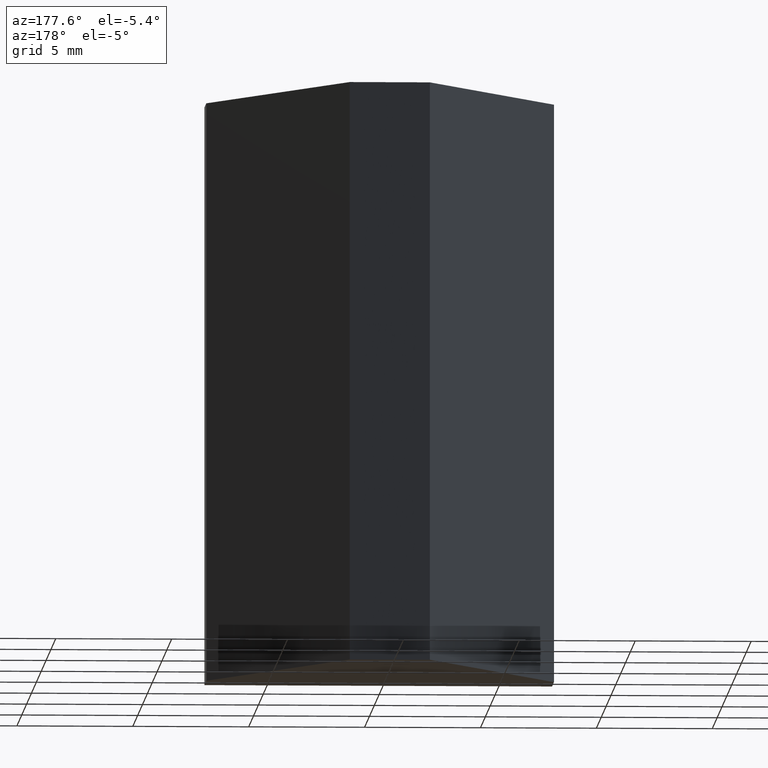
[diagram: clean part render]
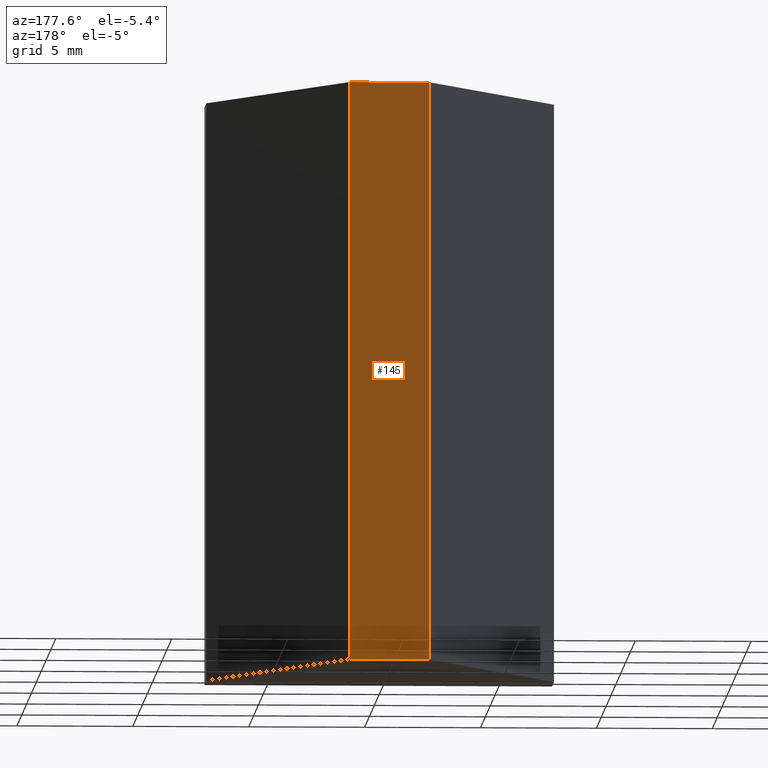
[diagram: same view with one face highlighted and labeled with its STEP entity id]
A machine part, auxiliary view. The second image highlights one B-rep face of the part: STEP entity #145.
In plain terms, the highlighted planar face has unit normal (0, 1, 0).
Its self-contained STEP definition (entity closure, byte-faithful):
#19=FACE_OUTER_BOUND('',#27,.T.);
#27=EDGE_LOOP('',(#112,#113,#114,#115));
#36=LINE('',#229,#54);
#42=LINE('',#240,#60);
#43=LINE('',#243,#61);
#44=LINE('',#244,#62);
#54=VECTOR('',#189,10.);
#60=VECTOR('',#199,10.);
#61=VECTOR('',#202,10.);
#62=VECTOR('',#203,10.);
#72=VERTEX_POINT('',#226);
#73=VERTEX_POINT('',#228);
#76=VERTEX_POINT('',#238);
#77=VERTEX_POINT('',#242);
#84=EDGE_CURVE('',#73,#72,#36,.T.);
#90=EDGE_CURVE('',#76,#72,#42,.T.);
#91=EDGE_CURVE('',#76,#77,#43,.T.);
#92=EDGE_CURVE('',#77,#73,#44,.T.);
#112=ORIENTED_EDGE('',*,*,#91,.T.);
#113=ORIENTED_EDGE('',*,*,#92,.T.);
#114=ORIENTED_EDGE('',*,*,#84,.T.);
#115=ORIENTED_EDGE('',*,*,#90,.F.);
#137=PLANE('',#176);
#145=ADVANCED_FACE('',(#19),#137,.T.);
#176=AXIS2_PLACEMENT_3D('',#241,#200,#201);
#189=DIRECTION('',(-1.,0.,0.));
#199=DIRECTION('',(0.,0.,-1.));
#200=DIRECTION('center_axis',(0.,1.,0.));
#201=DIRECTION('ref_axis',(0.,0.,1.));
#202=DIRECTION('',(1.,0.,0.));
#203=DIRECTION('',(0.,0.,-1.));
#226=CARTESIAN_POINT('',(-1.72649730810375,6.,-12.5));
#228=CARTESIAN_POINT('',(1.72649730810375,6.,-12.5));
#229=CARTESIAN_POINT('',(-1.72649730810375,6.,-12.5));
#238=CARTESIAN_POINT('',(-1.72649730810375,6.,12.5));
#240=CARTESIAN_POINT('',(-1.72649730810375,6.,0.));
#241=CARTESIAN_POINT('Origin',(-1.72649730810375,6.,0.));
#242=CARTESIAN_POINT('',(1.72649730810375,6.,12.5));
#243=CARTESIAN_POINT('',(-1.72649730810375,6.,12.5));
#244=CARTESIAN_POINT('',(1.72649730810375,6.,0.));